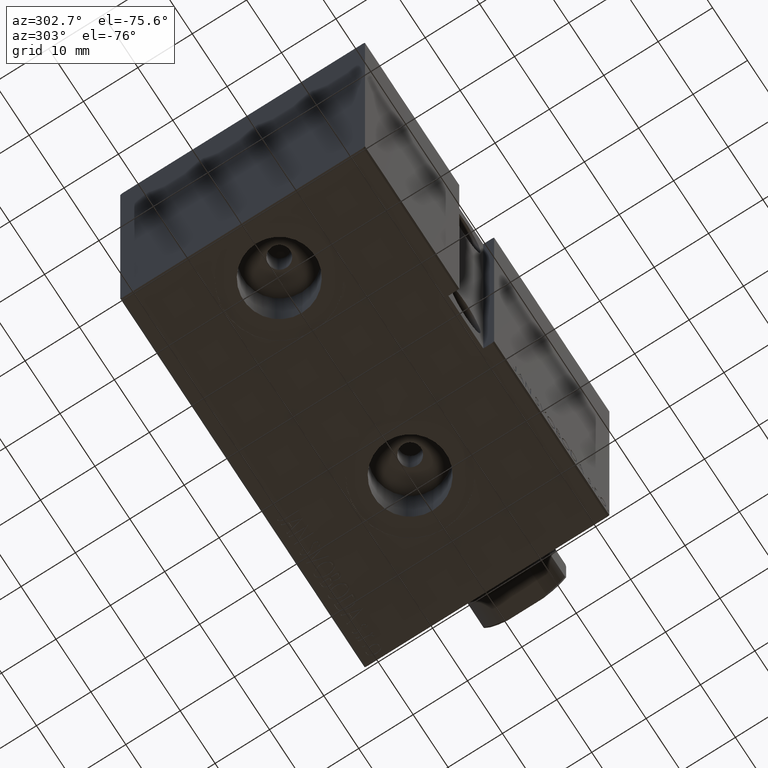
[diagram: clean part render]
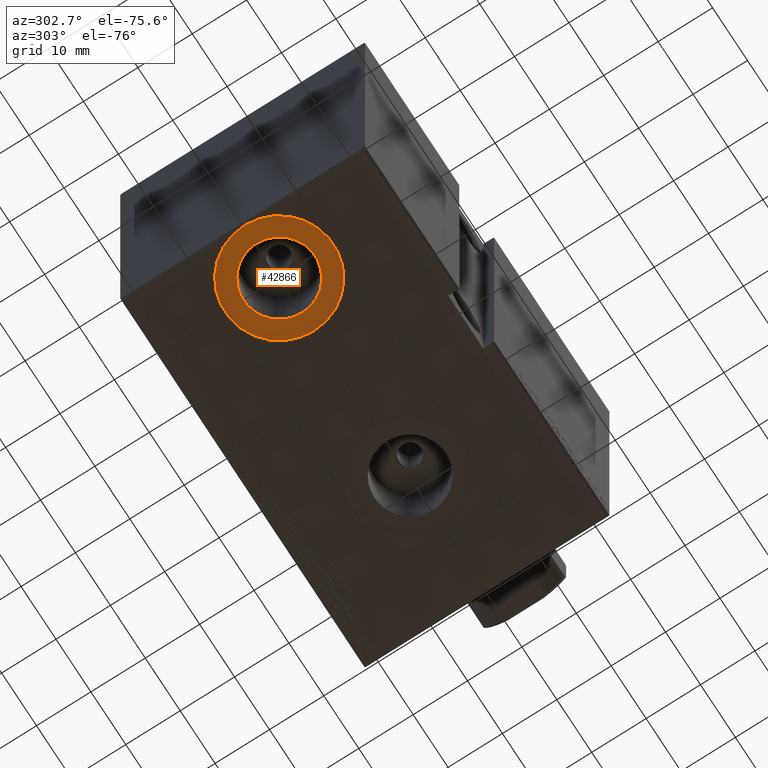
[diagram: same view with one face highlighted and labeled with its STEP entity id]
A machine part, auxiliary view. The second image highlights one B-rep face of the part: STEP entity #42866.
In plain terms, the highlighted planar face has unit normal (-0, 0, -1).
Its self-contained STEP definition (entity closure, byte-faithful):
#567 = CIRCLE ( 'NONE', #11654, 6.580000000000002736 ) ;
#2444 = VERTEX_POINT ( 'NONE', #15158 ) ;
#3004 = DIRECTION ( 'NONE',  ( 0.000000000000000000, 0.000000000000000000, -1.000000000000000000 ) ) ;
#3514 = DIRECTION ( 'NONE',  ( 0.000000000000000000, 0.000000000000000000, -1.000000000000000000 ) ) ;
#6002 = ORIENTED_EDGE ( 'NONE', *, *, #35059, .T. ) ;
#7895 = DIRECTION ( 'NONE',  ( -1.000000000000000000, 0.000000000000000000, 0.000000000000000000 ) ) ;
#9322 = FACE_BOUND ( 'NONE', #35940, .T. ) ;
#9349 = ORIENTED_EDGE ( 'NONE', *, *, #12319, .F. ) ;
#10166 = VERTEX_POINT ( 'NONE', #28211 ) ;
#10595 = CARTESIAN_POINT ( 'NONE',  ( 59.50000000000000711, -6.655964947265702476E-15, -32.39999999999999858 ) ) ;
#11654 = AXIS2_PLACEMENT_3D ( 'NONE', #10595, #37756, #40366 ) ;
#12319 = EDGE_CURVE ( 'NONE', #2444, #34476, #32710, .T. ) ;
#12370 = FACE_OUTER_BOUND ( 'NONE', #34576, .T. ) ;
#14484 = ORIENTED_EDGE ( 'NONE', *, *, #19904, .T. ) ;
#15158 = CARTESIAN_POINT ( 'NONE',  ( 66.07999999999999829, -5.850147353426743435E-15, -32.39999999999999858 ) ) ;
#15524 = CIRCLE ( 'NONE', #28707, 10.00000000000000178 ) ;
#16223 = DIRECTION ( 'NONE',  ( -1.000000000000000000, 0.000000000000000000, 0.000000000000000000 ) ) ;
#17241 = DIRECTION ( 'NONE',  ( 0.000000000000000000, 0.000000000000000000, -1.000000000000000000 ) ) ;
#19105 = DIRECTION ( 'NONE',  ( -1.000000000000000000, 0.000000000000000000, -0.000000000000000000 ) ) ;
#19904 = EDGE_CURVE ( 'NONE', #27091, #10166, #15524, .T. ) ;
#24123 = CIRCLE ( 'NONE', #29656, 10.00000000000000178 ) ;
#25270 = CARTESIAN_POINT ( 'NONE',  ( 52.92000000000000171, -6.655964947265702476E-15, -32.39999999999999858 ) ) ;
#27091 = VERTEX_POINT ( 'NONE', #29644 ) ;
#28211 = CARTESIAN_POINT ( 'NONE',  ( 69.50000000000000000, -5.431318148118349417E-15, -32.39999999999999858 ) ) ;
#28248 = CARTESIAN_POINT ( 'NONE',  ( 59.50000000000000711, -6.655964947265702476E-15, -32.39999999999999858 ) ) ;
#28707 = AXIS2_PLACEMENT_3D ( 'NONE', #37880, #17241, #7895 ) ;
#29644 = CARTESIAN_POINT ( 'NONE',  ( 49.50000000000000000, -6.655964947265702476E-15, -32.39999999999999858 ) ) ;
#29656 = AXIS2_PLACEMENT_3D ( 'NONE', #32745, #3004, #16223 ) ;
#29783 = DIRECTION ( 'NONE',  ( -1.000000000000000000, 0.000000000000000000, 0.000000000000000000 ) ) ;
#29993 = CARTESIAN_POINT ( 'NONE',  ( 59.50000000000000711, -6.655964947265702476E-15, -32.39999999999999858 ) ) ;
#32355 = PLANE ( 'NONE',  #39941 ) ;
#32710 = CIRCLE ( 'NONE', #42410, 6.580000000000002736 ) ;
#32745 = CARTESIAN_POINT ( 'NONE',  ( 59.50000000000000711, -6.655964947265702476E-15, -32.39999999999999858 ) ) ;
#34476 = VERTEX_POINT ( 'NONE', #25270 ) ;
#34576 = EDGE_LOOP ( 'NONE', ( #14484, #6002 ) ) ;
#35059 = EDGE_CURVE ( 'NONE', #10166, #27091, #24123, .T. ) ;
#35940 = EDGE_LOOP ( 'NONE', ( #39976, #9349 ) ) ;
#37090 = EDGE_CURVE ( 'NONE', #34476, #2444, #567, .T. ) ;
#37756 = DIRECTION ( 'NONE',  ( 0.000000000000000000, 0.000000000000000000, -1.000000000000000000 ) ) ;
#37880 = CARTESIAN_POINT ( 'NONE',  ( 59.50000000000000711, -6.655964947265702476E-15, -32.39999999999999858 ) ) ;
#38240 = DIRECTION ( 'NONE',  ( 0.000000000000000000, 0.000000000000000000, -1.000000000000000000 ) ) ;
#39941 = AXIS2_PLACEMENT_3D ( 'NONE', #28248, #38240, #19105 ) ;
#39976 = ORIENTED_EDGE ( 'NONE', *, *, #37090, .F. ) ;
#40366 = DIRECTION ( 'NONE',  ( -1.000000000000000000, 0.000000000000000000, 0.000000000000000000 ) ) ;
#42410 = AXIS2_PLACEMENT_3D ( 'NONE', #29993, #3514, #29783 ) ;
#42866 = ADVANCED_FACE ( 'NONE', ( #9322, #12370 ), #32355, .T. ) ;